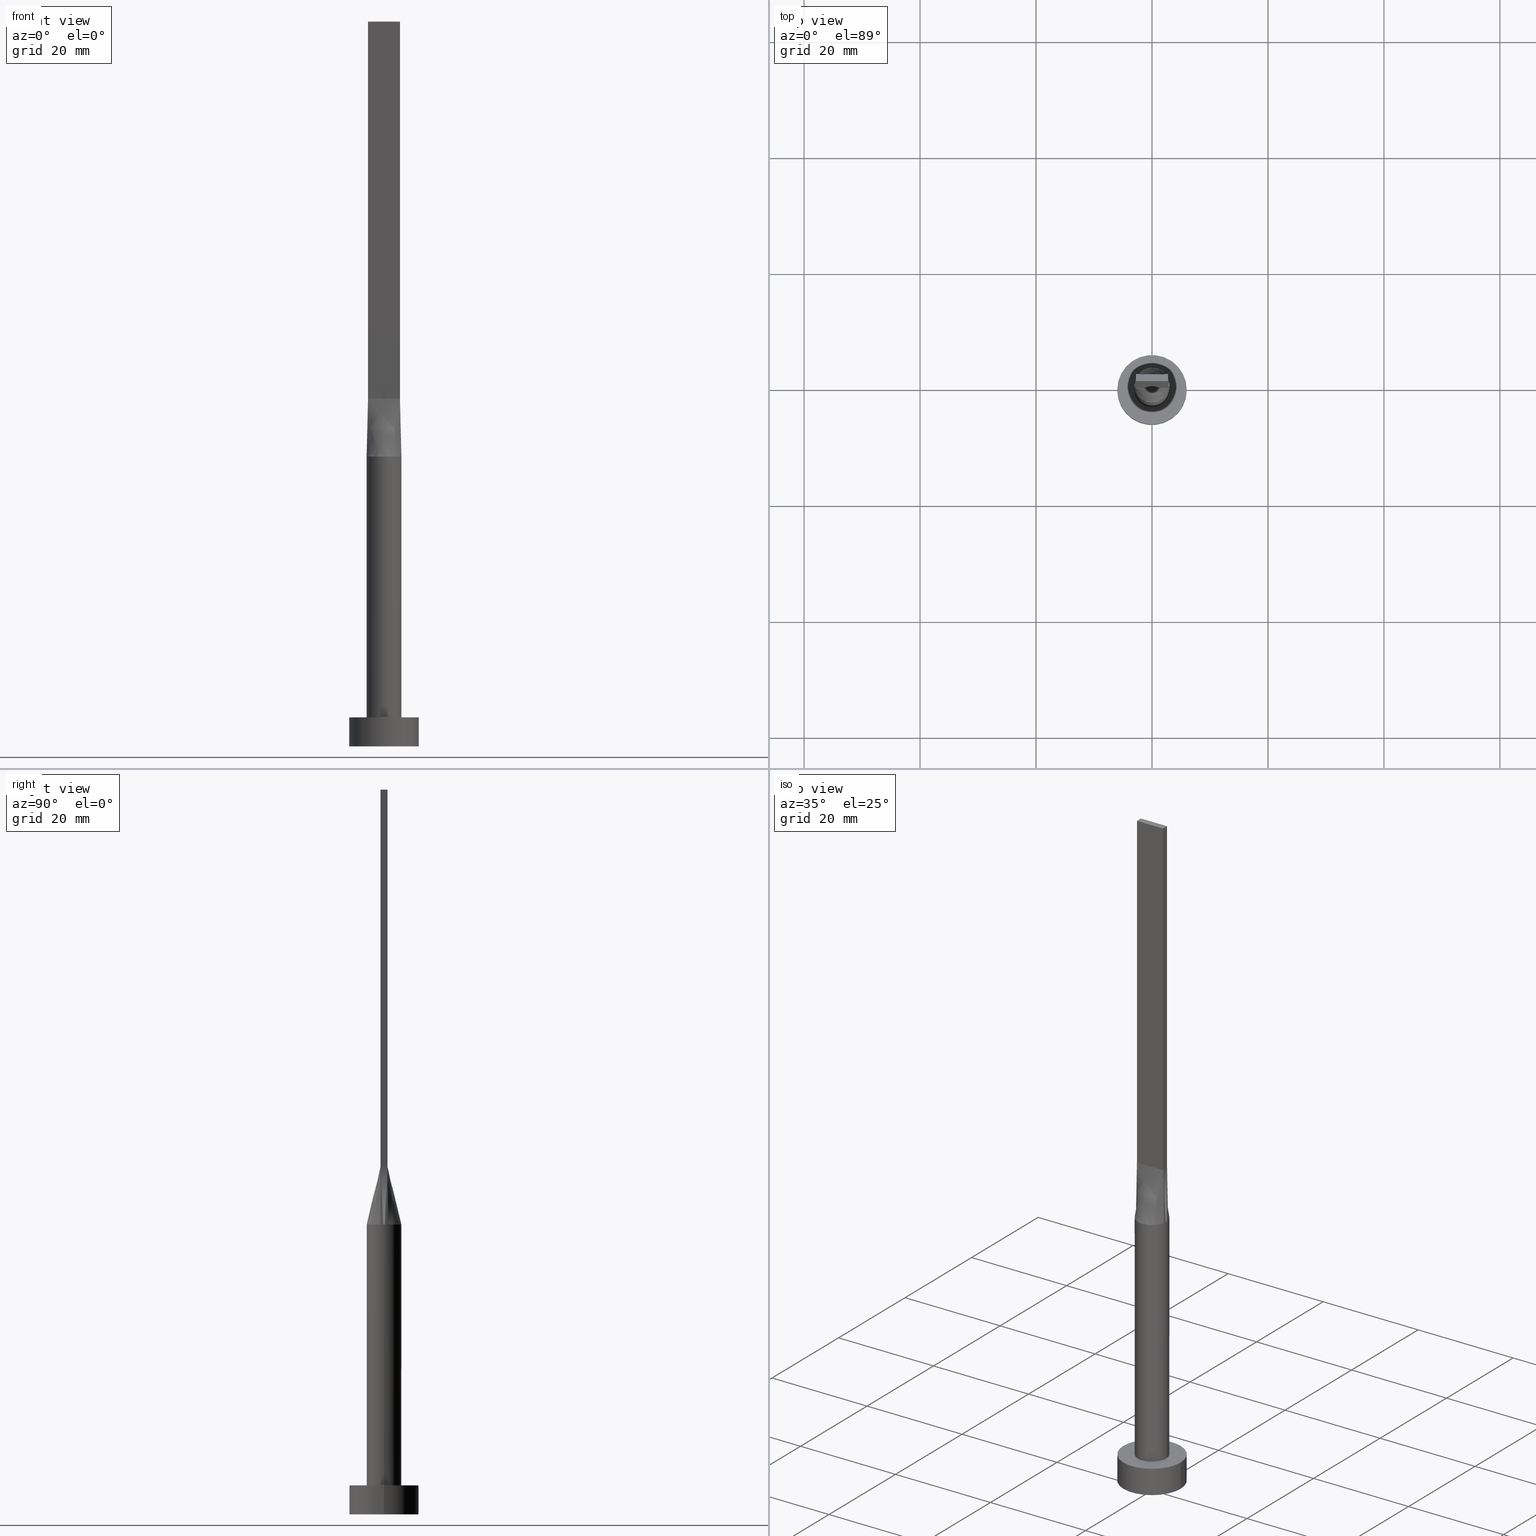
[diagram: canonical four-view strip — front | top / right | iso, engineering-drawing reading convention]
A machine part, canonical four-view strip (front | top / right | iso — engineering-drawing reading convention). The complete STEP part file that produces these views, byte-faithful:
ISO-10303-21;
HEADER;
FILE_DESCRIPTION (( 'STEP AP203' ),
    '1' );
FILE_NAME ('d598.STEP',
    '2023-02-13T10:29:34',
    ( '' ),
    ( '' ),
    'SwSTEP 2.0',
    'SolidWorks 2019',
    '' );
FILE_SCHEMA (( 'CONFIG_CONTROL_DESIGN' ));
ENDSEC;

DATA;
#1 = DIRECTION ( 'NONE',  ( 0.000000000000000000, 0.000000000000000000, 1.000000000000000000 ) ) ;
#2 = DIRECTION ( 'NONE',  ( 0.000000000000000000, 0.000000000000000000, 1.000000000000000000 ) ) ;
#3 = CARTESIAN_POINT ( 'NONE',  ( -2.518011668798964653, 1.657305971825549840, 50.00000000000000000 ) ) ;
#4 = PLANE ( 'NONE',  #255 ) ;
#5 = CARTESIAN_POINT ( 'NONE',  ( 0.000000000000000000, 0.000000000000000000, 49.99999999999999289 ) ) ;
#6 = CARTESIAN_POINT ( 'NONE',  ( 2.750000000000000000, 0.6000000000000001998, 60.00000000000000000 ) ) ;
#7 = EDGE_CURVE ( 'NONE', #68, #494, #131, .T. ) ;
#8 = DATE_AND_TIME ( #503, #304 ) ;
#9 = VECTOR ( 'NONE', #211, 1000.000000000000000 ) ;
#10 = CARTESIAN_POINT ( 'NONE',  ( 2.792624347712116872, 1.135030881087315979, 50.00000000000000000 ) ) ;
#11 = DIRECTION ( 'NONE',  ( 1.000000000000000000, -2.664535259100375697E-15, 0.000000000000000000 ) ) ;
#12 = ADVANCED_FACE ( 'NONE', ( #306 ), #144, .T. ) ;
#13 = CIRCLE ( 'NONE', #415, 6.000000000000000888 ) ;
#14 = EDGE_CURVE ( 'NONE', #502, #404, #129, .T. ) ;
#15 = ADVANCED_FACE ( 'NONE', ( #383, #340 ), #239, .T. ) ;
#16 = EDGE_LOOP ( 'NONE', ( #466, #152, #323, #464 ) ) ;
#17 = FACE_OUTER_BOUND ( 'NONE', #516, .T. ) ;
#18 = VERTEX_POINT ( 'NONE', #77 ) ;
#19 = EDGE_CURVE ( 'NONE', #286, #567, #93, .T. ) ;
#20 = CARTESIAN_POINT ( 'NONE',  ( 2.931047284229977734, 0.6395012256501758641, 49.99999999999999289 ) ) ;
#21 = ORIENTED_EDGE ( 'NONE', *, *, #493, .F. ) ;
#22 = PERSON_AND_ORGANIZATION ( #136, #411 ) ;
#23 = CARTESIAN_POINT ( 'NONE',  ( 0.000000000000000000, 0.000000000000000000, 49.99999999999999289 ) ) ;
#24 = DIRECTION ( 'NONE',  ( 1.000000000000000000, -5.913830031739115543E-17, 0.000000000000000000 ) ) ;
#25 = CC_DESIGN_PERSON_AND_ORGANIZATION_ASSIGNMENT ( #22, #62, ( #149 ) ) ;
#26 = ORIENTED_EDGE ( 'NONE', *, *, #549, .F. ) ;
#27 = LINE ( 'NONE', #155, #438 ) ;
#28 = EDGE_LOOP ( 'NONE', ( #556, #156, #263, #458 ) ) ;
#29 = VECTOR ( 'NONE', #60, 1000.000000000000000 ) ;
#30 = DIRECTION ( 'NONE',  ( 0.000000000000000000, 0.000000000000000000, 1.000000000000000000 ) ) ;
#31 = CARTESIAN_POINT ( 'NONE',  ( -2.750000000000000000, -0.5999999999999994227, 125.0000000000000000 ) ) ;
#32 = CARTESIAN_POINT ( 'NONE',  ( -2.999207587164656630, -0.2156168166748826387, 49.99999999999999289 ) ) ;
#33 = LINE ( 'NONE', #303, #87 ) ;
#34 = DIRECTION ( 'NONE',  ( -0.000000000000000000, -0.000000000000000000, -1.000000000000000000 ) ) ;
#35 = CC_DESIGN_DATE_AND_TIME_ASSIGNMENT ( #280, #100, ( #434 ) ) ;
#36 = CALENDAR_DATE ( 2023, 13, 2 ) ;
#37 = APPROVAL_PERSON_ORGANIZATION ( #414, #285, #552 ) ;
#38 = AXIS2_PLACEMENT_3D ( 'NONE', #245, #526, #441 ) ;
#39 = DIRECTION ( 'NONE',  ( 0.000000000000000000, 0.000000000000000000, 1.000000000000000000 ) ) ;
#40 = CARTESIAN_POINT ( 'NONE',  ( -0.4583333333333366455, -0.5999999999999994227, 59.99999999999998579 ) ) ;
#41 = LINE ( 'NONE', #541, #557 ) ;
#42 = CARTESIAN_POINT ( 'NONE',  ( 1.517787371616671876, -2.616501225271829156, 50.00000000000002842 ) ) ;
#43 = CIRCLE ( 'NONE', #447, 3.000000000000000444 ) ;
#44 = CARTESIAN_POINT ( 'NONE',  ( 2.328745122427009040, 1.922758842442225946, 49.99999999999998579 ) ) ;
#45 = CARTESIAN_POINT ( 'NONE',  ( -2.520833333333333037, -0.5999999999999994227, 59.99999999999999289 ) ) ;
#46 = DIRECTION ( 'NONE',  ( -1.000000000000000000, 0.000000000000000000, 0.000000000000000000 ) ) ;
#47 = CC_DESIGN_DATE_AND_TIME_ASSIGNMENT ( #435, #197, ( #225 ) ) ;
#48 = CARTESIAN_POINT ( 'NONE',  ( 0.2291666666666674346, 0.6000000000000001998, 60.00000000000000000 ) ) ;
#49 = ORIENTED_EDGE ( 'NONE', *, *, #198, .F. ) ;
#50 = CARTESIAN_POINT ( 'NONE',  ( 2.750000000000000000, 0.6000000000000001998, 125.0000000000000000 ) ) ;
#51 = FACE_OUTER_BOUND ( 'NONE', #95, .T. ) ;
#52 = LOCAL_TIME ( 11, 29, 34.00000000000000000, #474 ) ;
#53 = EDGE_CURVE ( 'NONE', #348, #18, #540, .T. ) ;
#54 = ORIENTED_EDGE ( 'NONE', *, *, #449, .F. ) ;
#55 = VERTEX_POINT ( 'NONE', #269 ) ;
#56 = AXIS2_PLACEMENT_3D ( 'NONE', #551, #1, #98 ) ;
#57 = CARTESIAN_POINT ( 'NONE',  ( -2.750000000000000000, 0.6000000000000001998, 125.0000000000000000 ) ) ;
#58 = VERTEX_POINT ( 'NONE', #318 ) ;
#59 = AXIS2_PLACEMENT_3D ( 'NONE', #78, #246, #527 ) ;
#60 = DIRECTION ( 'NONE',  ( -0.01810162078030962129, -0.003949444533885649103, -0.9998283518749604415 ) ) ;
#61 = ORIENTED_EDGE ( 'NONE', *, *, #86, .T. ) ;
#62 = PERSON_AND_ORGANIZATION_ROLE ( 'creator' ) ;
#63 = EDGE_CURVE ( 'NONE', #509, #465, #13, .T. ) ;
#64 = CARTESIAN_POINT ( 'NONE',  ( 2.518011668798964209, -1.657305971825550506, 49.99999999999998579 ) ) ;
#65 = ORIENTED_EDGE ( 'NONE', *, *, #108, .F. ) ;
#66 = LOCAL_TIME ( 11, 29, 34.00000000000000000, #455 ) ;
#67 = CARTESIAN_POINT ( 'NONE',  ( 2.750000000000000000, 0.6000000000000001998, 60.00000000000000000 ) ) ;
#68 = VERTEX_POINT ( 'NONE', #320 ) ;
#69 = CARTESIAN_POINT ( 'NONE',  ( 2.750000000000000000, -0.5999999999999997558, 60.00000000000000000 ) ) ;
#70 = CC_DESIGN_PERSON_AND_ORGANIZATION_ASSIGNMENT ( #548, #275, ( #434 ) ) ;
#71 = CARTESIAN_POINT ( 'NONE',  ( -2.750000000000000000, 0.6000000000000001998, 60.00000000000000000 ) ) ;
#72 = LINE ( 'NONE', #427, #564 ) ;
#73 = COORDINATED_UNIVERSAL_TIME_OFFSET ( 1, 0, .AHEAD. ) ;
#74 = CARTESIAN_POINT ( 'NONE',  ( -2.750000000000000000, 0.6000000000000001998, 125.0000000000000000 ) ) ;
#75 = DIRECTION ( 'NONE',  ( -1.000000000000000000, 0.000000000000000000, 0.000000000000000000 ) ) ;
#76 = CARTESIAN_POINT ( 'NONE',  ( -2.792624347712116428, -1.135030881087314647, 49.99999999999997868 ) ) ;
#77 = CARTESIAN_POINT ( 'NONE',  ( -2.750000000000000000, -0.5999999999999994227, 60.00000000000000000 ) ) ;
#78 = CARTESIAN_POINT ( 'NONE',  ( 0.000000000000000000, 0.000000000000000000, 0.000000000000000000 ) ) ;
#79 = CARTESIAN_POINT ( 'NONE',  ( 0.000000000000000000, 0.000000000000000000, 0.000000000000000000 ) ) ;
#80 = PERSON_AND_ORGANIZATION ( #136, #411 ) ;
#81 = CYLINDRICAL_SURFACE ( 'NONE', #573, 6.000000000000000888 ) ;
#82 = EDGE_CURVE ( 'NONE', #191, #58, #273, .T. ) ;
#83 = ORIENTED_EDGE ( 'NONE', *, *, #208, .F. ) ;
#84 = CARTESIAN_POINT ( 'NONE',  ( -2.792624347712117761, 1.135030881087315313, 49.99999999999998579 ) ) ;
#85 = PLANE ( 'NONE',  #56 ) ;
#86 = EDGE_CURVE ( 'NONE', #520, #58, #405, .T. ) ;
#87 = VECTOR ( 'NONE', #517, 1000.000000000000000 ) ;
#88 = CARTESIAN_POINT ( 'NONE',  ( -0.4026715616377299356, 2.999999999999999556, 49.99999999999998579 ) ) ;
#89 = CARTESIAN_POINT ( 'NONE',  ( -2.931047284229977290, 0.6395012256501755310, 49.99999999999999289 ) ) ;
#90 = CARTESIAN_POINT ( 'NONE',  ( -0.8041209001220690489, 2.916015559847871419, 50.00000000000000711 ) ) ;
#91 = APPLICATION_PROTOCOL_DEFINITION ( 'international standard', 'config_control_design', 1994, #312 ) ;
#92 = CARTESIAN_POINT ( 'NONE',  ( -2.750000000000000000, 0.6000000000000001998, 60.00000000000000000 ) ) ;
#93 = B_SPLINE_CURVE_WITH_KNOTS ( 'NONE', 3,
 ( #409, #376, #554, #139, #44, #212, #281, #97, #324, #88, #504, #579, #498, #165, #3, #84, #366, #134 ),
 .UNSPECIFIED., .F., .F.,
 ( 4, 2, 2, 2, 2, 2, 2, 2, 4 ),
 ( 0.000000000000000000, 0.1250000000000000000, 0.2500000000000000000, 0.3750000000000000000, 0.5000000000000000000, 0.6250000000000000000, 0.7500000000000000000, 0.8750000000000000000, 1.000000000000000000 ),
 .UNSPECIFIED. ) ;
#94 = CARTESIAN_POINT ( 'NONE',  ( -0.4026715616377299356, 2.999999999999999556, 49.99999999999998579 ) ) ;
#95 = EDGE_LOOP ( 'NONE', ( #418, #184 ) ) ;
#96 = PERSON_AND_ORGANIZATION ( #136, #411 ) ;
#97 = CARTESIAN_POINT ( 'NONE',  ( 0.8041209001220689379, 2.916015559847871863, 50.00000000000000711 ) ) ;
#98 = DIRECTION ( 'NONE',  ( 1.000000000000000000, 0.000000000000000000, -0.000000000000000000 ) ) ;
#99 = ORIENTED_EDGE ( 'NONE', *, *, #417, .T. ) ;
#100 = DATE_TIME_ROLE ( 'creation_date' ) ;
#101 = EDGE_CURVE ( 'NONE', #404, #502, #317, .T. ) ;
#102 = CARTESIAN_POINT ( 'NONE',  ( 2.750000000000000000, -0.5999999999999997558, 60.00000000000000000 ) ) ;
#103 = ORIENTED_EDGE ( 'NONE', *, *, #53, .F. ) ;
#104 = VECTOR ( 'NONE', #157, 1000.000000000000000 ) ;
#105 = FACE_OUTER_BOUND ( 'NONE', #145, .T. ) ;
#106 = ORIENTED_EDGE ( 'NONE', *, *, #82, .F. ) ;
#107 = APPROVAL_DATE_TIME ( #576, #553 ) ;
#108 = EDGE_CURVE ( 'NONE', #268, #240, #307, .T. ) ;
#109 = DIRECTION ( 'NONE',  ( 0.000000000000000000, -1.000000000000000000, 0.000000000000000000 ) ) ;
#110 = VECTOR ( 'NONE', #172, 1000.000000000000000 ) ;
#111 = DIRECTION ( 'NONE',  ( -0.000000000000000000, 0.000000000000000000, -1.000000000000000000 ) ) ;
#112 = DIRECTION ( 'NONE',  ( 0.000000000000000000, 0.000000000000000000, 1.000000000000000000 ) ) ;
#113 = EDGE_CURVE ( 'NONE', #333, #520, #442, .T. ) ;
#114 = CARTESIAN_POINT ( 'NONE',  ( -2.750000000000000000, 0.6000000000000001998, 125.0000000000000000 ) ) ;
#115 = CARTESIAN_POINT ( 'NONE',  ( 2.750000000000000000, -0.1999999999999992617, 59.99999999999999289 ) ) ;
#116 = ORIENTED_EDGE ( 'NONE', *, *, #208, .T. ) ;
#117 = DIRECTION ( 'NONE',  ( 0.01810162078030957619, -0.003949444533885573642, 0.9998283518749604415 ) ) ;
#118 = EDGE_CURVE ( 'NONE', #55, #191, #536, .T. ) ;
#119 = LOCAL_TIME ( 11, 29, 34.00000000000000000, #73 ) ;
#120 = DIRECTION ( 'NONE',  ( 0.000000000000000000, 0.000000000000000000, 1.000000000000000000 ) ) ;
#121 = CARTESIAN_POINT ( 'NONE',  ( -2.931047284229977290, 0.6395012256501761971, 49.99999999999999289 ) ) ;
#122 = APPROVAL_ROLE ( '' ) ;
#123 = APPLICATION_PROTOCOL_DEFINITION ( 'international standard', 'config_control_design', 1994, #544 ) ;
#124 = CARTESIAN_POINT ( 'NONE',  ( -2.750000000000000000, -0.5999999999999994227, 125.0000000000000000 ) ) ;
#125 = DIRECTION ( 'NONE',  ( -0.000000000000000000, -0.000000000000000000, -1.000000000000000000 ) ) ;
#126 = CARTESIAN_POINT ( 'NONE',  ( -0.9166666666666658525, 0.6000000000000000888, 60.00000000000000000 ) ) ;
#127 = VECTOR ( 'NONE', #389, 1000.000000000000000 ) ;
#128 = DIRECTION ( 'NONE',  ( 1.000000000000000000, 0.000000000000000000, 0.000000000000000000 ) ) ;
#129 = CIRCLE ( 'NONE', #568, 6.000000000000000888 ) ;
#130 = CARTESIAN_POINT ( 'NONE',  ( -1.829136458871248427, -2.402980488111649660, 49.99999999999997158 ) ) ;
#131 = CIRCLE ( 'NONE', #272, 3.000000000000000444 ) ;
#132 = CARTESIAN_POINT ( 'NONE',  ( 0.9166666666666671848, 0.6000000000000000888, 60.00000000000000000 ) ) ;
#133 = ORIENTED_EDGE ( 'NONE', *, *, #425, .T. ) ;
#134 = CARTESIAN_POINT ( 'NONE',  ( -2.931320679040856803, 0.6395611071856786012, 49.99999999999999289 ) ) ;
#135 = CARTESIAN_POINT ( 'NONE',  ( 2.520833333333333037, 0.6000000000000000888, 60.00000000000000000 ) ) ;
#136 = PERSON ( 'NEUR�EN�', 'NEUR�EN�', 'NEUR�EN�', ('NEUR�EN�'), ('NEUR�EN�'), ('NEUR�EN�') ) ;
#137 = VECTOR ( 'NONE', #117, 1000.000000000000000 ) ;
#138 = VERTEX_POINT ( 'NONE', #31 ) ;
#139 = CARTESIAN_POINT ( 'NONE',  ( 2.518011668798964209, 1.657305971825549840, 49.99999999999997158 ) ) ;
#140 = ADVANCED_FACE ( 'NONE', ( #249 ), #419, .T. ) ;
#141 = CARTESIAN_POINT ( 'NONE',  ( -6.000000000000000888, 0.000000000000000000, 5.000000000000000000 ) ) ;
#142 = ORIENTED_EDGE ( 'NONE', *, *, #344, .T. ) ;
#143 = ADVANCED_FACE ( 'NONE', ( #105 ), #380, .T. ) ;
#144 = CYLINDRICAL_SURFACE ( 'NONE', #182, 6.000000000000000888 ) ;
#145 = EDGE_LOOP ( 'NONE', ( #343, #171, #294, #525, #274 ) ) ;
#146 = CARTESIAN_POINT ( 'NONE',  ( -1.829136458871247761, 2.402980488111649660, 49.99999999999998579 ) ) ;
#147 = DIRECTION ( 'NONE',  ( 1.000000000000000000, 0.000000000000000000, 0.000000000000000000 ) ) ;
#148 = ORIENTED_EDGE ( 'NONE', *, *, #226, .F. ) ;
#149 = PRODUCT_DEFINITION_FORMATION_WITH_SPECIFIED_SOURCE ( 'LIBOVOLN�', '', #334, .NOT_KNOWN. ) ;
#150 = CARTESIAN_POINT ( 'NONE',  ( -6.000000000000000888, 0.000000000000000000, 5.000000000000000000 ) ) ;
#151 = CARTESIAN_POINT ( 'NONE',  ( 0.000000000000000000, 0.000000000000000000, 49.99999999999999289 ) ) ;
#152 = ORIENTED_EDGE ( 'NONE', *, *, #425, .F. ) ;
#153 = CARTESIAN_POINT ( 'NONE',  ( 2.931047284229977734, -0.6395012256501753090, 49.99999999999999289 ) ) ;
#154 = ADVANCED_FACE ( 'NONE', ( #519 ), #463, .F. ) ;
#155 = CARTESIAN_POINT ( 'NONE',  ( -2.750000000000000000, -0.5999999999999994227, 125.0000000000000000 ) ) ;
#156 = ORIENTED_EDGE ( 'NONE', *, *, #63, .F. ) ;
#157 = DIRECTION ( 'NONE',  ( -0.000000000000000000, -0.000000000000000000, -1.000000000000000000 ) ) ;
#158 = FACE_OUTER_BOUND ( 'NONE', #401, .T. ) ;
#159 = AXIS2_PLACEMENT_3D ( 'NONE', #79, #257, #128 ) ;
#160 = DIRECTION ( 'NONE',  ( -0.000000000000000000, -0.000000000000000000, -1.000000000000000000 ) ) ;
#161 = CARTESIAN_POINT ( 'NONE',  ( -2.931320679040856803, 0.6395611071856786012, 49.99999999999999289 ) ) ;
#162 = CARTESIAN_POINT ( 'NONE',  ( -2.328745122427009928, -1.922758842442225058, 49.99999999999997868 ) ) ;
#163 = EDGE_CURVE ( 'NONE', #18, #494, #422, .T. ) ;
#164 = CARTESIAN_POINT ( 'NONE',  ( -2.976487486186430331, 0.4312336333497662211, 49.99999999999999289 ) ) ;
#165 = CARTESIAN_POINT ( 'NONE',  ( -2.328745122427008152, 1.922758842442225280, 49.99999999999998579 ) ) ;
#166 = CARTESIAN_POINT ( 'NONE',  ( -1.145833333333335480, -0.5999999999999994227, 59.99999999999998579 ) ) ;
#167 = EDGE_CURVE ( 'NONE', #138, #55, #27, .T. ) ;
#168 = DIRECTION ( 'NONE',  ( 1.000000000000000000, 0.000000000000000000, 0.000000000000000000 ) ) ;
#169 = DIRECTION ( 'NONE',  ( 0.000000000000000000, -1.000000000000000000, 0.000000000000000000 ) ) ;
#170 = DIRECTION ( 'NONE',  ( 1.000000000000000000, -5.913830031739115543E-17, 0.000000000000000000 ) ) ;
#171 = ORIENTED_EDGE ( 'NONE', *, *, #178, .T. ) ;
#172 = DIRECTION ( 'NONE',  ( -0.000000000000000000, 1.000000000000000000, -0.000000000000000000 ) ) ;
#173 = ORIENTED_EDGE ( 'NONE', *, *, #178, .F. ) ;
#174 = APPROVAL_DATE_TIME ( #8, #285 ) ;
#175 = AXIS2_PLACEMENT_3D ( 'NONE', #23, #396, #431 ) ;
#176 = CARTESIAN_POINT ( 'NONE',  ( 2.328745122427009040, 1.922758842442225946, 49.99999999999998579 ) ) ;
#177 = ORIENTED_EDGE ( 'NONE', *, *, #393, .F. ) ;
#178 = EDGE_CURVE ( 'NONE', #268, #286, #43, .T. ) ;
#179 = B_SPLINE_SURFACE_WITH_KNOTS ( 'NONE', 3, 1, ( 
 ( #121, #71 ),
 ( #164, #315 ),
 ( #248, #440 ),
 ( #32, #362 ),
 ( #259, #395 ),
 ( #530, #448 ) ),
 .UNSPECIFIED., .F., .F., .F.,
 ( 4, 2, 4 ),
 ( 2, 2 ),
 ( 0.000000000000000000, 0.5000000000000000000, 1.000000000000000000 ),
 ( 0.000000000000000000, 1.000000000000000000 ),
 .UNSPECIFIED. ) ;
#180 = EDGE_LOOP ( 'NONE', ( #49, #336 ) ) ;
#181 = EDGE_LOOP ( 'NONE', ( #65, #21, #83, #319, #302, #187 ) ) ;
#182 = AXIS2_PLACEMENT_3D ( 'NONE', #461, #507, #462 ) ;
#183 = CARTESIAN_POINT ( 'NONE',  ( 2.750000000000000000, 0.2000000000000006772, 59.99999999999999289 ) ) ;
#184 = ORIENTED_EDGE ( 'NONE', *, *, #14, .F. ) ;
#185 = DIRECTION ( 'NONE',  ( 1.000000000000000000, 0.000000000000000000, 0.000000000000000000 ) ) ;
#186 = CARTESIAN_POINT ( 'NONE',  ( 1.145833333333330373, -0.5999999999999996447, 60.00000000000000000 ) ) ;
#187 = ORIENTED_EDGE ( 'NONE', *, *, #198, .T. ) ;
#188 = CIRCLE ( 'NONE', #537, 3.000000000000000444 ) ;
#189 = LOCAL_TIME ( 11, 29, 34.00000000000000000, #251 ) ;
#190 = CARTESIAN_POINT ( 'NONE',  ( 2.999207587164657074, -0.2156168166748835269, 49.99999999999999289 ) ) ;
#191 = VERTEX_POINT ( 'NONE', #236 ) ;
#192 = ADVANCED_FACE ( 'NONE', ( #17 ), #523, .T. ) ;
#193 = CARTESIAN_POINT ( 'NONE',  ( -3.000000000000000444, 0.000000000000000000, 49.99999999999999289 ) ) ;
#194 = CARTESIAN_POINT ( 'NONE',  ( -2.750000000000000000, -0.5999999999999994227, 125.0000000000000000 ) ) ;
#195 = CARTESIAN_POINT ( 'NONE',  ( 1.833333333333331261, -0.5999999999999996447, 60.00000000000000000 ) ) ;
#196 = ORIENTED_EDGE ( 'NONE', *, *, #522, .T. ) ;
#197 = DATE_TIME_ROLE ( 'classification_date' ) ;
#198 = EDGE_CURVE ( 'NONE', #508, #240, #188, .T. ) ;
#199 = CARTESIAN_POINT ( 'NONE',  ( -2.840523642114988423, 0.6197506128250878099, 54.99999999999999289 ) ) ;
#200 = CARTESIAN_POINT ( 'NONE',  ( -0.9166666666666691832, -0.5999999999999994227, 59.99999999999998579 ) ) ;
#201 = LINE ( 'NONE', #124, #104 ) ;
#202 = DIRECTION ( 'NONE',  ( 0.000000000000000000, 1.000000000000000000, 0.000000000000000000 ) ) ;
#203 = CARTESIAN_POINT ( 'NONE',  ( 2.750000000000000000, 0.6000000000000001998, 125.0000000000000000 ) ) ;
#204 = VECTOR ( 'NONE', #170, 1000.000000000000000 ) ;
#205 = CARTESIAN_POINT ( 'NONE',  ( -0.2291666666666703212, -0.5999999999999995337, 59.99999999999999289 ) ) ;
#206 = APPROVAL_DATE_TIME ( #559, #452 ) ;
#207 = DIRECTION ( 'NONE',  ( -1.000000000000000000, -0.000000000000000000, -0.000000000000000000 ) ) ;
#208 = EDGE_CURVE ( 'NONE', #494, #333, #265, .T. ) ;
#209 = CARTESIAN_POINT ( 'NONE',  ( -1.517787371616671654, 2.616501225271827380, 50.00000000000000711 ) ) ;
#210 = VECTOR ( 'NONE', #260, 1000.000000000000000 ) ;
#211 = DIRECTION ( 'NONE',  ( -0.01810162078030962129, -0.003949444533885605735, 0.9998283518749604415 ) ) ;
#212 = CARTESIAN_POINT ( 'NONE',  ( 1.829136458871247761, 2.402980488111650992, 49.99999999999998579 ) ) ;
#213 = CARTESIAN_POINT ( 'NONE',  ( 2.750000000000000000, -0.5999999999999997558, 125.0000000000000000 ) ) ;
#214 = LINE ( 'NONE', #491, #420 ) ;
#215 = ADVANCED_BREP_SHAPE_REPRESENTATION ( 'd598', ( #534, #159 ), #338 ) ;
#216 = CARTESIAN_POINT ( 'NONE',  ( -2.750000000000000000, -0.5999999999999994227, 60.00000000000000000 ) ) ;
#217 = ADVANCED_FACE ( 'NONE', ( #406 ), #368, .T. ) ;
#218 = DIRECTION ( 'NONE',  ( 1.000000000000000000, 0.000000000000000000, 0.000000000000000000 ) ) ;
#219 = ORIENTED_EDGE ( 'NONE', *, *, #19, .F. ) ;
#220 = DIRECTION ( 'NONE',  ( -0.000000000000000000, -0.000000000000000000, -1.000000000000000000 ) ) ;
#221 = CARTESIAN_POINT ( 'NONE',  ( 1.829136458871247761, 2.402980488111650992, 49.99999999999998579 ) ) ;
#222 = ORIENTED_EDGE ( 'NONE', *, *, #429, .F. ) ;
#223 = DIRECTION ( 'NONE',  ( 1.000000000000000000, 0.000000000000000000, 0.000000000000000000 ) ) ;
#224 = ORIENTED_EDGE ( 'NONE', *, *, #299, .F. ) ;
#225 = SECURITY_CLASSIFICATION ( '', '', #234 ) ;
#226 = EDGE_CURVE ( 'NONE', #18, #520, #374, .T. ) ;
#227 = ORIENTED_EDGE ( 'NONE', *, *, #337, .F. ) ;
#228 = ORIENTED_EDGE ( 'NONE', *, *, #167, .F. ) ;
#229 = ADVANCED_FACE ( 'NONE', ( #51 ), #85, .F. ) ;
#230 = ORIENTED_EDGE ( 'NONE', *, *, #363, .F. ) ;
#231 = PRODUCT_DEFINITION_SHAPE ( 'NONE', 'NONE',  #434 ) ;
#232 = DIRECTION ( 'NONE',  ( 1.000000000000000000, 0.000000000000000000, -0.000000000000000000 ) ) ;
#233 = ORIENTED_EDGE ( 'NONE', *, *, #377, .T. ) ;
#234 = SECURITY_CLASSIFICATION_LEVEL ( 'unclassified' ) ;
#235 = VECTOR ( 'NONE', #220, 1000.000000000000000 ) ;
#236 = CARTESIAN_POINT ( 'NONE',  ( 2.750000000000000000, 0.6000000000000001998, 125.0000000000000000 ) ) ;
#237 = ORIENTED_EDGE ( 'NONE', *, *, #417, .F. ) ;
#238 = CARTESIAN_POINT ( 'NONE',  ( -6.000000000000000888, 0.000000000000000000, 0.000000000000000000 ) ) ;
#239 = PLANE ( 'NONE',  #309 ) ;
#240 = VERTEX_POINT ( 'NONE', #325 ) ;
#241 = PERSON_AND_ORGANIZATION ( #136, #411 ) ;
#242 = ADVANCED_FACE ( 'NONE', ( #410 ), #283, .T. ) ;
#243 = VERTEX_POINT ( 'NONE', #114 ) ;
#244 = CALENDAR_DATE ( 2023, 13, 2 ) ;
#245 = CARTESIAN_POINT ( 'NONE',  ( 0.000000000000000000, 0.000000000000000000, 5.000000000000000000 ) ) ;
#246 = DIRECTION ( 'NONE',  ( 0.000000000000000000, 0.000000000000000000, 1.000000000000000000 ) ) ;
#247 = PLANE ( 'NONE',  #355 ) ;
#248 = CARTESIAN_POINT ( 'NONE',  ( -2.999207587164656630, 0.2156168166748832771, 49.99999999999999289 ) ) ;
#249 = FACE_OUTER_BOUND ( 'NONE', #278, .T. ) ;
#250 = PLANE ( 'NONE',  #267 ) ;
#251 = COORDINATED_UNIVERSAL_TIME_OFFSET ( 1, 0, .AHEAD. ) ;
#252 = DIRECTION ( 'NONE',  ( 0.000000000000000000, 0.000000000000000000, 1.000000000000000000 ) ) ;
#253 = AXIS2_PLACEMENT_3D ( 'NONE', #298, #30, #467 ) ;
#254 =( NAMED_UNIT ( * ) PLANE_ANGLE_UNIT ( ) SI_UNIT ( $, .RADIAN. ) );
#255 = AXIS2_PLACEMENT_3D ( 'NONE', #287, #373, #555 ) ;
#256 = CARTESIAN_POINT ( 'NONE',  ( -1.604166666666667851, -0.5999999999999994227, 59.99999999999998579 ) ) ;
#257 = DIRECTION ( 'NONE',  ( 0.000000000000000000, 0.000000000000000000, 1.000000000000000000 ) ) ;
#258 = DESIGN_CONTEXT ( 'detailed design', #312, 'design' ) ;
#259 = CARTESIAN_POINT ( 'NONE',  ( -2.976487486186430331, -0.4312336333497656105, 49.99999999999999289 ) ) ;
#260 = DIRECTION ( 'NONE',  ( -0.01810162078030962129, 0.003949444533885595326, 0.9998283518749604415 ) ) ;
#261 = CARTESIAN_POINT ( 'NONE',  ( -2.520833333333333037, 0.6000000000000000888, 60.00000000000000000 ) ) ;
#262 = ADVANCED_FACE ( 'NONE', ( #158 ), #247, .F. ) ;
#263 = ORIENTED_EDGE ( 'NONE', *, *, #326, .T. ) ;
#264 = DIRECTION ( 'NONE',  ( 0.000000000000000000, 0.000000000000000000, 1.000000000000000000 ) ) ;
#265 = CIRCLE ( 'NONE', #322, 3.000000000000000444 ) ;
#266 = CARTESIAN_POINT ( 'NONE',  ( 0.4583333333333340365, 0.6000000000000000888, 60.00000000000000000 ) ) ;
#267 = AXIS2_PLACEMENT_3D ( 'NONE', #203, #390, #528 ) ;
#268 = VERTEX_POINT ( 'NONE', #346 ) ;
#269 = CARTESIAN_POINT ( 'NONE',  ( 2.750000000000000000, -0.5999999999999997558, 125.0000000000000000 ) ) ;
#270 = CARTESIAN_POINT ( 'NONE',  ( -0.4583333333333325932, 0.6000000000000000888, 60.00000000000000000 ) ) ;
#271 = APPROVAL_STATUS ( 'not_yet_approved' ) ;
#272 = AXIS2_PLACEMENT_3D ( 'NONE', #529, #2, #168 ) ;
#273 = LINE ( 'NONE', #50, #235 ) ;
#274 = ORIENTED_EDGE ( 'NONE', *, *, #113, .F. ) ;
#275 = PERSON_AND_ORGANIZATION_ROLE ( 'creator' ) ;
#276 = ADVANCED_FACE ( 'NONE', ( #471 ), #250, .F. ) ;
#277 = CARTESIAN_POINT ( 'NONE',  ( 0.4026715616377294915, 2.999999999999999556, 49.99999999999999289 ) ) ;
#278 = EDGE_LOOP ( 'NONE', ( #116, #353, #148, #416 ) ) ;
#279 = CARTESIAN_POINT ( 'NONE',  ( -2.328745122427008152, 1.922758842442225280, 49.99999999999998579 ) ) ;
#280 = DATE_AND_TIME ( #412, #66 ) ;
#281 = CARTESIAN_POINT ( 'NONE',  ( 1.517787371616672099, 2.616501225271827824, 50.00000000000000000 ) ) ;
#282 = CARTESIAN_POINT ( 'NONE',  ( 2.750000000000000000, -0.5999999999999997558, 60.00000000000000000 ) ) ;
#283 = B_SPLINE_SURFACE_WITH_KNOTS ( 'NONE', 3, 1, ( 
 ( #371, #543 ),
 ( #403, #135 ),
 ( #10, #453 ),
 ( #369, #451 ),
 ( #176, #321 ),
 ( #221, #499 ),
 ( #496, #132 ),
 ( #492, #266 ),
 ( #277, #48 ),
 ( #94, #547 ),
 ( #90, #270 ),
 ( #209, #126 ),
 ( #146, #314 ),
 ( #279, #539 ),
 ( #501, #423 ),
 ( #561, #394 ),
 ( #484, #261 ),
 ( #89, #384 ) ),
 .UNSPECIFIED., .F., .F., .F.,
 ( 4, 2, 2, 2, 2, 2, 2, 2, 4 ),
 ( 2, 2 ),
 ( 0.000000000000000000, 0.1250000000000000000, 0.2500000000000000000, 0.3750000000000000000, 0.5000000000000000000, 0.6250000000000000000, 0.7500000000000000000, 0.8750000000000000000, 1.000000000000000000 ),
 ( 0.000000000000000000, 1.000000000000000000 ),
 .UNSPECIFIED. ) ;
#284 = ORIENTED_EDGE ( 'NONE', *, *, #226, .T. ) ;
#285 = APPROVAL ( #271, 'NEUR�EN�' ) ;
#286 = VERTEX_POINT ( 'NONE', #308 ) ;
#287 = CARTESIAN_POINT ( 'NONE',  ( 0.000000000000000000, 0.000000000000000000, 125.0000000000000000 ) ) ;
#288 = CC_DESIGN_SECURITY_CLASSIFICATION ( #225, ( #149 ) ) ;
#289 = CARTESIAN_POINT ( 'NONE',  ( 2.750000000000000000, -0.3999999999999994116, 59.99999999999999289 ) ) ;
#290 = ORIENTED_EDGE ( 'NONE', *, *, #363, .T. ) ;
#291 = CIRCLE ( 'NONE', #175, 3.000000000000000444 ) ;
#292 = ORIENTED_EDGE ( 'NONE', *, *, #108, .T. ) ;
#293 = CARTESIAN_POINT ( 'NONE',  ( 2.999207587164657074, 0.2156168166748827775, 49.99999999999999289 ) ) ;
#294 = ORIENTED_EDGE ( 'NONE', *, *, #482, .T. ) ;
#295 = CARTESIAN_POINT ( 'NONE',  ( 0.000000000000000000, 0.000000000000000000, 0.000000000000000000 ) ) ;
#296 = EDGE_LOOP ( 'NONE', ( #413, #224, #227, #375 ) ) ;
#297 = PERSON_AND_ORGANIZATION ( #136, #411 ) ;
#298 = CARTESIAN_POINT ( 'NONE',  ( 0.000000000000000000, 0.000000000000000000, 5.000000000000000000 ) ) ;
#299 = EDGE_CURVE ( 'NONE', #243, #348, #481, .T. ) ;
#300 = DIRECTION ( 'NONE',  ( 5.913830031739115543E-17, 1.000000000000000000, -0.000000000000000000 ) ) ;
#301 = CARTESIAN_POINT ( 'NONE',  ( 2.976487486186430331, 0.4312336333497658880, 49.99999999999999289 ) ) ;
#302 = ORIENTED_EDGE ( 'NONE', *, *, #449, .T. ) ;
#303 = CARTESIAN_POINT ( 'NONE',  ( 2.750000000000000000, 0.6000000000000001998, 125.0000000000000000 ) ) ;
#304 = LOCAL_TIME ( 11, 29, 34.00000000000000000, #408 ) ;
#305 = CARTESIAN_POINT ( 'NONE',  ( 1.604166666666664298, -0.5999999999999996447, 60.00000000000000000 ) ) ;
#306 = FACE_OUTER_BOUND ( 'NONE', #28, .T. ) ;
#307 = LINE ( 'NONE', #316, #360 ) ;
#308 = CARTESIAN_POINT ( 'NONE',  ( 2.931303352270923757, 0.6395574164693091923, 49.99999999999999289 ) ) ;
#309 = AXIS2_PLACEMENT_3D ( 'NONE', #518, #112, #470 ) ;
#310 = MECHANICAL_CONTEXT ( 'NONE', #544, 'mechanical' ) ;
#311 = CARTESIAN_POINT ( 'NONE',  ( 0.000000000000000000, 0.000000000000000000, 49.99999999999999289 ) ) ;
#312 = APPLICATION_CONTEXT ( 'configuration controlled 3d designs of mechanical parts and assemblies' ) ;
#313 = CIRCLE ( 'NONE', #370, 3.000000000000000444 ) ;
#314 = CARTESIAN_POINT ( 'NONE',  ( -1.145833333333332371, 0.6000000000000000888, 60.00000000000000000 ) ) ;
#315 = CARTESIAN_POINT ( 'NONE',  ( -2.750000000000000000, 0.3999999999999996336, 59.99999999999999289 ) ) ;
#316 = CARTESIAN_POINT ( 'NONE',  ( 3.000000000000000444, 3.673940397442059868E-16, 49.99999999999999289 ) ) ;
#317 = CIRCLE ( 'NONE', #59, 6.000000000000000888 ) ;
#318 = CARTESIAN_POINT ( 'NONE',  ( 2.750000000000000000, 0.6000000000000001998, 60.00000000000000000 ) ) ;
#319 = ORIENTED_EDGE ( 'NONE', *, *, #7, .F. ) ;
#320 = CARTESIAN_POINT ( 'NONE',  ( -2.999603793582328315, -7.025298958605770567E-16, 49.99999999999999289 ) ) ;
#321 = CARTESIAN_POINT ( 'NONE',  ( 1.604166666666666963, 0.6000000000000000888, 60.00000000000000000 ) ) ;
#322 = AXIS2_PLACEMENT_3D ( 'NONE', #335, #515, #223 ) ;
#323 = ORIENTED_EDGE ( 'NONE', *, *, #344, .F. ) ;
#324 = CARTESIAN_POINT ( 'NONE',  ( 0.4026715616377294915, 2.999999999999999556, 49.99999999999999289 ) ) ;
#325 = CARTESIAN_POINT ( 'NONE',  ( 3.000000000000000444, 3.673940397442059868E-16, 5.000000000000000000 ) ) ;
#326 = EDGE_CURVE ( 'NONE', #509, #404, #533, .T. ) ;
#327 = CARTESIAN_POINT ( 'NONE',  ( -2.931315536094174057, -0.6395601373676296220, 49.99999999999999289 ) ) ;
#328 = ORIENTED_EDGE ( 'NONE', *, *, #7, .T. ) ;
#329 = ORIENTED_EDGE ( 'NONE', *, *, #482, .F. ) ;
#330 = CC_DESIGN_APPROVAL ( #285, ( #434 ) ) ;
#331 = ADVANCED_FACE ( 'NONE', ( #514 ), #4, .T. ) ;
#332 = CARTESIAN_POINT ( 'NONE',  ( 6.000000000000000888, 7.347880794884120722E-16, 0.000000000000000000 ) ) ;
#333 = VERTEX_POINT ( 'NONE', #483 ) ;
#334 = PRODUCT ( 'd598', 'd598', '', ( #310 ) ) ;
#335 = CARTESIAN_POINT ( 'NONE',  ( 0.000000000000000000, 0.000000000000000000, 49.99999999999999289 ) ) ;
#336 = ORIENTED_EDGE ( 'NONE', *, *, #377, .F. ) ;
#337 = EDGE_CURVE ( 'NONE', #191, #243, #33, .T. ) ;
#338 =( GEOMETRIC_REPRESENTATION_CONTEXT ( 3 ) GLOBAL_UNCERTAINTY_ASSIGNED_CONTEXT ( ( #487 ) ) GLOBAL_UNIT_ASSIGNED_CONTEXT ( ( #581, #254, #359 ) ) REPRESENTATION_CONTEXT ( 'NONE', 'WORKASPACE' ) );
#339 = APPROVAL_STATUS ( 'not_yet_approved' ) ;
#340 = FACE_OUTER_BOUND ( 'NONE', #512, .T. ) ;
#341 = DIRECTION ( 'NONE',  ( -0.000000000000000000, -0.000000000000000000, -1.000000000000000000 ) ) ;
#342 = DIRECTION ( 'NONE',  ( -0.000000000000000000, -0.000000000000000000, -1.000000000000000000 ) ) ;
#343 = ORIENTED_EDGE ( 'NONE', *, *, #493, .T. ) ;
#344 = EDGE_CURVE ( 'NONE', #243, #138, #574, .T. ) ;
#345 = LINE ( 'NONE', #193, #127 ) ;
#346 = CARTESIAN_POINT ( 'NONE',  ( 2.999603793582328759, 7.166726372340513095E-16, 49.99999999999999289 ) ) ;
#347 = CARTESIAN_POINT ( 'NONE',  ( 2.792624347712116872, -1.135030881087315757, 49.99999999999999289 ) ) ;
#348 = VERTEX_POINT ( 'NONE', #354 ) ;
#349 = PERSON_AND_ORGANIZATION_ROLE ( 'classification_officer' ) ;
#350 = CARTESIAN_POINT ( 'NONE',  ( 2.840523642114988867, 0.6197506128250880320, 54.99999999999999289 ) ) ;
#351 = PLANE ( 'NONE',  #457 ) ;
#352 = DIRECTION ( 'NONE',  ( 1.000000000000000000, 0.000000000000000000, 0.000000000000000000 ) ) ;
#353 = ORIENTED_EDGE ( 'NONE', *, *, #113, .T. ) ;
#354 = CARTESIAN_POINT ( 'NONE',  ( -2.750000000000000000, 0.6000000000000001998, 60.00000000000000000 ) ) ;
#355 = AXIS2_PLACEMENT_3D ( 'NONE', #194, #300, #356 ) ;
#356 = DIRECTION ( 'NONE',  ( -1.000000000000000000, 5.913830031739115543E-17, 0.000000000000000000 ) ) ;
#357 = PRODUCT_RELATED_PRODUCT_CATEGORY ( 'detail', '', ( #334 ) ) ;
#358 = CARTESIAN_POINT ( 'NONE',  ( -2.750000000000000000, -0.5999999999999994227, 60.00000000000000000 ) ) ;
#359 =( NAMED_UNIT ( * ) SI_UNIT ( $, .STERADIAN. ) SOLID_ANGLE_UNIT ( ) );
#360 = VECTOR ( 'NONE', #34, 1000.000000000000000 ) ;
#361 = CARTESIAN_POINT ( 'NONE',  ( 0.4583333333333299286, -0.5999999999999995337, 59.99999999999999289 ) ) ;
#362 = CARTESIAN_POINT ( 'NONE',  ( -2.750000000000000000, -0.2000000000000005107, 59.99999999999999289 ) ) ;
#363 = EDGE_CURVE ( 'NONE', #465, #509, #546, .T. ) ;
#364 = CARTESIAN_POINT ( 'NONE',  ( -2.931047284229977734, -0.6395012256501755310, 49.99999999999999289 ) ) ;
#365 = APPROVAL_STATUS ( 'not_yet_approved' ) ;
#366 = CARTESIAN_POINT ( 'NONE',  ( -2.878980386154874616, 0.8781411751610629368, 50.00000000000000000 ) ) ;
#367 = CC_DESIGN_PERSON_AND_ORGANIZATION_ASSIGNMENT ( #297, #510, ( #149 ) ) ;
#368 = CYLINDRICAL_SURFACE ( 'NONE', #378, 3.000000000000000444 ) ;
#369 = CARTESIAN_POINT ( 'NONE',  ( 2.518011668798964209, 1.657305971825549840, 49.99999999999997158 ) ) ;
#370 = AXIS2_PLACEMENT_3D ( 'NONE', #311, #39, #11 ) ;
#371 = CARTESIAN_POINT ( 'NONE',  ( 2.931047284229977290, 0.6395012256501767522, 49.99999999999999289 ) ) ;
#372 = VECTOR ( 'NONE', #341, 1000.000000000000000 ) ;
#373 = DIRECTION ( 'NONE',  ( 0.000000000000000000, 0.000000000000000000, 1.000000000000000000 ) ) ;
#374 = LINE ( 'NONE', #216, #204 ) ;
#375 = ORIENTED_EDGE ( 'NONE', *, *, #82, .T. ) ;
#376 = CARTESIAN_POINT ( 'NONE',  ( 2.878980386154874616, 0.8781411751610636029, 49.99999999999999289 ) ) ;
#377 = EDGE_CURVE ( 'NONE', #240, #508, #495, .T. ) ;
#378 = AXIS2_PLACEMENT_3D ( 'NONE', #5, #454, #46 ) ;
#379 = EDGE_LOOP ( 'NONE', ( #61, #106, #407, #99 ) ) ;
#380 = B_SPLINE_SURFACE_WITH_KNOTS ( 'NONE', 3, 1, ( 
 ( #381, #102 ),
 ( #391, #289 ),
 ( #190, #115 ),
 ( #293, #183 ),
 ( #301, #472 ),
 ( #20, #67 ) ),
 .UNSPECIFIED., .F., .F., .F.,
 ( 4, 2, 4 ),
 ( 2, 2 ),
 ( 0.000000000000000000, 0.5000000000000000000, 1.000000000000000000 ),
 ( 0.000000000000000000, 1.000000000000000000 ),
 .UNSPECIFIED. ) ;
#381 = CARTESIAN_POINT ( 'NONE',  ( 2.931047284229977290, -0.6395012256501766412, 49.99999999999999289 ) ) ;
#382 = EDGE_LOOP ( 'NONE', ( #426, #500, #26, #329 ) ) ;
#383 = FACE_BOUND ( 'NONE', #180, .T. ) ;
#384 = CARTESIAN_POINT ( 'NONE',  ( -2.750000000000000000, 0.6000000000000001998, 60.00000000000000000 ) ) ;
#385 = CARTESIAN_POINT ( 'NONE',  ( 2.291666666666665186, -0.5999999999999996447, 60.00000000000000000 ) ) ;
#386 = CC_DESIGN_APPROVAL ( #553, ( #149 ) ) ;
#387 = CARTESIAN_POINT ( 'NONE',  ( 0.000000000000000000, 0.000000000000000000, 5.000000000000000000 ) ) ;
#388 = ORIENTED_EDGE ( 'NONE', *, *, #429, .T. ) ;
#389 = DIRECTION ( 'NONE',  ( -0.000000000000000000, -0.000000000000000000, -1.000000000000000000 ) ) ;
#390 = DIRECTION ( 'NONE',  ( 0.000000000000000000, -1.000000000000000000, 0.000000000000000000 ) ) ;
#391 = CARTESIAN_POINT ( 'NONE',  ( 2.976487486186430331, -0.4312336333497666652, 49.99999999999999289 ) ) ;
#392 = CARTESIAN_POINT ( 'NONE',  ( -0.4026715616377306572, -3.000000000000000000, 50.00000000000000000 ) ) ;
#393 = EDGE_CURVE ( 'NONE', #567, #348, #480, .T. ) ;
#394 = CARTESIAN_POINT ( 'NONE',  ( -2.291666666666666075, 0.6000000000000000888, 60.00000000000000000 ) ) ;
#395 = CARTESIAN_POINT ( 'NONE',  ( -2.750000000000000000, -0.4000000000000001332, 59.99999999999999289 ) ) ;
#396 = DIRECTION ( 'NONE',  ( 0.000000000000000000, 0.000000000000000000, 1.000000000000000000 ) ) ;
#397 = VECTOR ( 'NONE', #443, 1000.000000000000000 ) ;
#398 = CALENDAR_DATE ( 2023, 13, 2 ) ;
#399 = CARTESIAN_POINT ( 'NONE',  ( 0.4026715616377293805, -3.000000000000001332, 49.99999999999998579 ) ) ;
#400 = CC_DESIGN_APPROVAL ( #452, ( #225 ) ) ;
#401 = EDGE_LOOP ( 'NONE', ( #284, #237, #228, #133 ) ) ;
#402 = CARTESIAN_POINT ( 'NONE',  ( 0.9166666666666636321, -0.5999999999999996447, 59.99999999999999289 ) ) ;
#403 = CARTESIAN_POINT ( 'NONE',  ( 2.878980386154874616, 0.8781411751610636029, 49.99999999999999289 ) ) ;
#404 = VERTEX_POINT ( 'NONE', #238 ) ;
#405 = LINE ( 'NONE', #6, #110 ) ;
#406 = FACE_OUTER_BOUND ( 'NONE', #181, .T. ) ;
#407 = ORIENTED_EDGE ( 'NONE', *, *, #118, .F. ) ;
#408 = COORDINATED_UNIVERSAL_TIME_OFFSET ( 1, 0, .AHEAD. ) ;
#409 = CARTESIAN_POINT ( 'NONE',  ( 2.931303352270923757, 0.6395574164693091923, 49.99999999999999289 ) ) ;
#410 = FACE_OUTER_BOUND ( 'NONE', #382, .T. ) ;
#411 = ORGANIZATION ( 'NEUR�EN�', 'NEUR�EN�', '' ) ;
#412 = CALENDAR_DATE ( 2023, 13, 2 ) ;
#413 = ORIENTED_EDGE ( 'NONE', *, *, #549, .T. ) ;
#414 = PERSON_AND_ORGANIZATION ( #136, #411 ) ;
#415 = AXIS2_PLACEMENT_3D ( 'NONE', #490, #264, #218 ) ;
#416 = ORIENTED_EDGE ( 'NONE', *, *, #163, .T. ) ;
#417 = EDGE_CURVE ( 'NONE', #55, #520, #72, .T. ) ;
#418 = ORIENTED_EDGE ( 'NONE', *, *, #101, .F. ) ;
#419 = B_SPLINE_SURFACE_WITH_KNOTS ( 'NONE', 3, 1, ( 
 ( #364, #358 ),
 ( #437, #45 ),
 ( #76, #531 ),
 ( #444, #580 ),
 ( #162, #256 ),
 ( #130, #166 ),
 ( #476, #200 ),
 ( #446, #40 ),
 ( #392, #205 ),
 ( #399, #572 ),
 ( #578, #361 ),
 ( #42, #402 ),
 ( #478, #186 ),
 ( #511, #305 ),
 ( #64, #195 ),
 ( #347, #385 ),
 ( #563, #566 ),
 ( #153, #69 ) ),
 .UNSPECIFIED., .F., .F., .F.,
 ( 4, 2, 2, 2, 2, 2, 2, 2, 4 ),
 ( 2, 2 ),
 ( 0.000000000000000000, 0.1250000000000000833, 0.2500000000000001665, 0.3750000000000001110, 0.5000000000000001110, 0.6250000000000001110, 0.7500000000000000000, 0.8750000000000000000, 1.000000000000000000 ),
 ( 0.000000000000000000, 1.000000000000000000 ),
 .UNSPECIFIED. ) ;
#420 = VECTOR ( 'NONE', #125, 1000.000000000000000 ) ;
#421 = DIRECTION ( 'NONE',  ( 0.000000000000000000, 0.000000000000000000, 1.000000000000000000 ) ) ;
#422 = LINE ( 'NONE', #432, #29 ) ;
#423 = CARTESIAN_POINT ( 'NONE',  ( -1.833333333333332593, 0.6000000000000000888, 60.00000000000000000 ) ) ;
#424 = ORIENTED_EDGE ( 'NONE', *, *, #167, .T. ) ;
#425 = EDGE_CURVE ( 'NONE', #138, #18, #201, .T. ) ;
#426 = ORIENTED_EDGE ( 'NONE', *, *, #19, .T. ) ;
#427 = CARTESIAN_POINT ( 'NONE',  ( 2.750000000000000000, -0.5999999999999997558, 125.0000000000000000 ) ) ;
#428 = DIRECTION ( 'NONE',  ( -1.000000000000000000, 0.000000000000000000, 0.000000000000000000 ) ) ;
#429 = EDGE_CURVE ( 'NONE', #567, #68, #291, .T. ) ;
#430 = EDGE_LOOP ( 'NONE', ( #388, #328, #545, #103, #177 ) ) ;
#431 = DIRECTION ( 'NONE',  ( 1.000000000000000000, 0.000000000000000000, 0.000000000000000000 ) ) ;
#432 = CARTESIAN_POINT ( 'NONE',  ( -2.840523642114988867, -0.6197506128250873658, 54.99999999999999289 ) ) ;
#433 = ORIENTED_EDGE ( 'NONE', *, *, #118, .T. ) ;
#434 = PRODUCT_DEFINITION ( 'NEZN�M�', '', #149, #258 ) ;
#435 = DATE_AND_TIME ( #244, #52 ) ;
#436 = CARTESIAN_POINT ( 'NONE',  ( 6.000000000000000888, 7.347880794884120722E-16, 5.000000000000000000 ) ) ;
#437 = CARTESIAN_POINT ( 'NONE',  ( -2.878980386154874616, -0.8781411751610622707, 49.99999999999999289 ) ) ;
#438 = VECTOR ( 'NONE', #24, 1000.000000000000000 ) ;
#439 = CLOSED_SHELL ( 'NONE', ( #192, #485, #12, #15, #229, #217, #140, #143, #488, #242, #276, #154, #262, #459, #331 ) ) ;
#440 = CARTESIAN_POINT ( 'NONE',  ( -2.750000000000000000, 0.1999999999999993727, 59.99999999999999289 ) ) ;
#441 = DIRECTION ( 'NONE',  ( 1.000000000000000000, 0.000000000000000000, 0.000000000000000000 ) ) ;
#442 = LINE ( 'NONE', #575, #210 ) ;
#443 = DIRECTION ( 'NONE',  ( -0.000000000000000000, -0.000000000000000000, -1.000000000000000000 ) ) ;
#444 = CARTESIAN_POINT ( 'NONE',  ( -2.518011668798964653, -1.657305971825550062, 49.99999999999997868 ) ) ;
#445 = SHAPE_DEFINITION_REPRESENTATION ( #231, #215 ) ;
#446 = CARTESIAN_POINT ( 'NONE',  ( -0.8041209001220698260, -2.916015559847872307, 50.00000000000001421 ) ) ;
#447 = AXIS2_PLACEMENT_3D ( 'NONE', #151, #468, #352 ) ;
#448 = CARTESIAN_POINT ( 'NONE',  ( -2.750000000000000000, -0.5999999999999995337, 60.00000000000000000 ) ) ;
#449 = EDGE_CURVE ( 'NONE', #68, #508, #345, .T. ) ;
#450 = APPROVAL_PERSON_ORGANIZATION ( #80, #553, #489 ) ;
#451 = CARTESIAN_POINT ( 'NONE',  ( 1.833333333333333481, 0.6000000000000000888, 60.00000000000000000 ) ) ;
#452 = APPROVAL ( #339, 'NEUR�EN�' ) ;
#453 = CARTESIAN_POINT ( 'NONE',  ( 2.291666666666666519, 0.6000000000000000888, 60.00000000000000000 ) ) ;
#454 = DIRECTION ( 'NONE',  ( -0.000000000000000000, -0.000000000000000000, -1.000000000000000000 ) ) ;
#455 = COORDINATED_UNIVERSAL_TIME_OFFSET ( 1, 0, .AHEAD. ) ;
#456 = CARTESIAN_POINT ( 'NONE',  ( -3.000000000000000444, 0.000000000000000000, 5.000000000000000000 ) ) ;
#457 = AXIS2_PLACEMENT_3D ( 'NONE', #521, #75, #252 ) ;
#458 = ORIENTED_EDGE ( 'NONE', *, *, #101, .T. ) ;
#459 = ADVANCED_FACE ( 'NONE', ( #569 ), #351, .F. ) ;
#460 = AXIS2_PLACEMENT_3D ( 'NONE', #57, #232, #111 ) ;
#461 = CARTESIAN_POINT ( 'NONE',  ( 0.000000000000000000, 0.000000000000000000, 5.000000000000000000 ) ) ;
#462 = DIRECTION ( 'NONE',  ( -1.000000000000000000, 0.000000000000000000, 0.000000000000000000 ) ) ;
#463 = PLANE ( 'NONE',  #460 ) ;
#464 = ORIENTED_EDGE ( 'NONE', *, *, #299, .T. ) ;
#465 = VERTEX_POINT ( 'NONE', #436 ) ;
#466 = ORIENTED_EDGE ( 'NONE', *, *, #53, .T. ) ;
#467 = DIRECTION ( 'NONE',  ( 1.000000000000000000, 0.000000000000000000, 0.000000000000000000 ) ) ;
#468 = DIRECTION ( 'NONE',  ( 0.000000000000000000, 0.000000000000000000, 1.000000000000000000 ) ) ;
#469 = ORIENTED_EDGE ( 'NONE', *, *, #63, .T. ) ;
#470 = DIRECTION ( 'NONE',  ( 1.000000000000000000, 0.000000000000000000, -0.000000000000000000 ) ) ;
#471 = FACE_OUTER_BOUND ( 'NONE', #296, .T. ) ;
#472 = CARTESIAN_POINT ( 'NONE',  ( 2.750000000000000000, 0.4000000000000005218, 59.99999999999999289 ) ) ;
#473 = ORIENTED_EDGE ( 'NONE', *, *, #326, .F. ) ;
#474 = COORDINATED_UNIVERSAL_TIME_OFFSET ( 1, 0, .AHEAD. ) ;
#475 = FACE_OUTER_BOUND ( 'NONE', #430, .T. ) ;
#476 = CARTESIAN_POINT ( 'NONE',  ( -1.517787371616672321, -2.616501225271827380, 49.99999999999999289 ) ) ;
#477 = PERSON_AND_ORGANIZATION ( #136, #411 ) ;
#478 = CARTESIAN_POINT ( 'NONE',  ( 1.829136458871248205, -2.402980488111650992, 49.99999999999999289 ) ) ;
#479 = CARTESIAN_POINT ( 'NONE',  ( 0.000000000000000000, 0.000000000000000000, 5.000000000000000000 ) ) ;
#480 = LINE ( 'NONE', #199, #137 ) ;
#481 = LINE ( 'NONE', #74, #397 ) ;
#482 = EDGE_CURVE ( 'NONE', #286, #58, #535, .T. ) ;
#483 = CARTESIAN_POINT ( 'NONE',  ( 2.931332910560268790, -0.6395638358681943192, 49.99999999999999289 ) ) ;
#484 = CARTESIAN_POINT ( 'NONE',  ( -2.878980386154874616, 0.8781411751610629368, 50.00000000000000000 ) ) ;
#485 = ADVANCED_FACE ( 'NONE', ( #570 ), #81, .T. ) ;
#486 = VECTOR ( 'NONE', #109, 1000.000000000000000 ) ;
#487 = UNCERTAINTY_MEASURE_WITH_UNIT (LENGTH_MEASURE( 1.000000000000000082E-05 ), #581, 'distance_accuracy_value', 'NONE');
#488 = ADVANCED_FACE ( 'NONE', ( #475 ), #179, .T. ) ;
#489 = APPROVAL_ROLE ( '' ) ;
#490 = CARTESIAN_POINT ( 'NONE',  ( 0.000000000000000000, 0.000000000000000000, 5.000000000000000000 ) ) ;
#491 = CARTESIAN_POINT ( 'NONE',  ( 6.000000000000000888, 7.347880794884120722E-16, 5.000000000000000000 ) ) ;
#492 = CARTESIAN_POINT ( 'NONE',  ( 0.8041209001220689379, 2.916015559847871863, 50.00000000000000711 ) ) ;
#493 = EDGE_CURVE ( 'NONE', #333, #268, #313, .T. ) ;
#494 = VERTEX_POINT ( 'NONE', #327 ) ;
#495 = CIRCLE ( 'NONE', #253, 3.000000000000000444 ) ;
#496 = CARTESIAN_POINT ( 'NONE',  ( 1.517787371616672099, 2.616501225271827824, 50.00000000000000000 ) ) ;
#497 = PERSON_AND_ORGANIZATION_ROLE ( 'design_owner' ) ;
#498 = CARTESIAN_POINT ( 'NONE',  ( -1.829136458871247761, 2.402980488111649660, 49.99999999999998579 ) ) ;
#499 = CARTESIAN_POINT ( 'NONE',  ( 1.145833333333333703, 0.6000000000000000888, 60.00000000000000000 ) ) ;
#500 = ORIENTED_EDGE ( 'NONE', *, *, #393, .T. ) ;
#501 = CARTESIAN_POINT ( 'NONE',  ( -2.518011668798964653, 1.657305971825549840, 50.00000000000000000 ) ) ;
#502 = VERTEX_POINT ( 'NONE', #332 ) ;
#503 = CALENDAR_DATE ( 2023, 13, 2 ) ;
#504 = CARTESIAN_POINT ( 'NONE',  ( -0.8041209001220690489, 2.916015559847871419, 50.00000000000000711 ) ) ;
#505 = ORIENTED_EDGE ( 'NONE', *, *, #14, .T. ) ;
#506 = ORIENTED_EDGE ( 'NONE', *, *, #337, .T. ) ;
#507 = DIRECTION ( 'NONE',  ( -0.000000000000000000, -0.000000000000000000, -1.000000000000000000 ) ) ;
#508 = VERTEX_POINT ( 'NONE', #456 ) ;
#509 = VERTEX_POINT ( 'NONE', #141 ) ;
#510 = PERSON_AND_ORGANIZATION_ROLE ( 'design_supplier' ) ;
#511 = CARTESIAN_POINT ( 'NONE',  ( 2.328745122427008152, -1.922758842442226390, 49.99999999999998579 ) ) ;
#512 = EDGE_LOOP ( 'NONE', ( #469, #290 ) ) ;
#513 = CARTESIAN_POINT ( 'NONE',  ( -2.750000000000000000, 0.6000000000000001998, 125.0000000000000000 ) ) ;
#514 = FACE_OUTER_BOUND ( 'NONE', #565, .T. ) ;
#515 = DIRECTION ( 'NONE',  ( 0.000000000000000000, 0.000000000000000000, 1.000000000000000000 ) ) ;
#516 = EDGE_LOOP ( 'NONE', ( #173, #292, #233, #54, #222, #219 ) ) ;
#517 = DIRECTION ( 'NONE',  ( -1.000000000000000000, 0.000000000000000000, 0.000000000000000000 ) ) ;
#518 = CARTESIAN_POINT ( 'NONE',  ( 0.000000000000000000, 0.000000000000000000, 5.000000000000000000 ) ) ;
#519 = FACE_OUTER_BOUND ( 'NONE', #16, .T. ) ;
#520 = VERTEX_POINT ( 'NONE', #282 ) ;
#521 = CARTESIAN_POINT ( 'NONE',  ( 2.750000000000000000, -0.5999999999999997558, 125.0000000000000000 ) ) ;
#522 = EDGE_CURVE ( 'NONE', #465, #502, #214, .T. ) ;
#523 = CYLINDRICAL_SURFACE ( 'NONE', #524, 3.000000000000000444 ) ;
#524 = AXIS2_PLACEMENT_3D ( 'NONE', #560, #342, #428 ) ;
#525 = ORIENTED_EDGE ( 'NONE', *, *, #86, .F. ) ;
#526 = DIRECTION ( 'NONE',  ( 0.000000000000000000, 0.000000000000000000, 1.000000000000000000 ) ) ;
#527 = DIRECTION ( 'NONE',  ( 1.000000000000000000, 0.000000000000000000, 0.000000000000000000 ) ) ;
#528 = DIRECTION ( 'NONE',  ( 0.000000000000000000, -0.000000000000000000, -1.000000000000000000 ) ) ;
#529 = CARTESIAN_POINT ( 'NONE',  ( 0.000000000000000000, 0.000000000000000000, 49.99999999999999289 ) ) ;
#530 = CARTESIAN_POINT ( 'NONE',  ( -2.931047284229977734, -0.6395012256501755310, 49.99999999999999289 ) ) ;
#531 = CARTESIAN_POINT ( 'NONE',  ( -2.291666666666666519, -0.5999999999999994227, 59.99999999999998579 ) ) ;
#532 = VECTOR ( 'NONE', #169, 1000.000000000000000 ) ;
#533 = LINE ( 'NONE', #150, #372 ) ;
#534 = MANIFOLD_SOLID_BREP ( 'P�idat vysunut�m5', #439 ) ;
#535 = LINE ( 'NONE', #350, #9 ) ;
#536 = LINE ( 'NONE', #213, #550 ) ;
#537 = AXIS2_PLACEMENT_3D ( 'NONE', #387, #120, #147 ) ;
#538 = APPROVAL_PERSON_ORGANIZATION ( #477, #452, #122 ) ;
#539 = CARTESIAN_POINT ( 'NONE',  ( -1.604166666666666075, 0.6000000000000000888, 60.00000000000000000 ) ) ;
#540 = LINE ( 'NONE', #92, #532 ) ;
#541 = CARTESIAN_POINT ( 'NONE',  ( -2.750000000000000000, 0.6000000000000001998, 60.00000000000000000 ) ) ;
#542 = CC_DESIGN_PERSON_AND_ORGANIZATION_ASSIGNMENT ( #96, #497, ( #334 ) ) ;
#543 = CARTESIAN_POINT ( 'NONE',  ( 2.750000000000000000, 0.6000000000000001998, 60.00000000000000000 ) ) ;
#544 = APPLICATION_CONTEXT ( 'configuration controlled 3d designs of mechanical parts and assemblies' ) ;
#545 = ORIENTED_EDGE ( 'NONE', *, *, #163, .F. ) ;
#546 = CIRCLE ( 'NONE', #38, 6.000000000000000888 ) ;
#547 = CARTESIAN_POINT ( 'NONE',  ( -0.2291666666666659635, 0.6000000000000000888, 60.00000000000000000 ) ) ;
#548 = PERSON_AND_ORGANIZATION ( #136, #411 ) ;
#549 = EDGE_CURVE ( 'NONE', #58, #348, #41, .T. ) ;
#550 = VECTOR ( 'NONE', #202, 1000.000000000000000 ) ;
#551 = CARTESIAN_POINT ( 'NONE',  ( 0.000000000000000000, 0.000000000000000000, 0.000000000000000000 ) ) ;
#552 = APPROVAL_ROLE ( '' ) ;
#553 = APPROVAL ( #365, 'NEUR�EN�' ) ;
#554 = CARTESIAN_POINT ( 'NONE',  ( 2.792624347712116872, 1.135030881087315979, 50.00000000000000000 ) ) ;
#555 = DIRECTION ( 'NONE',  ( 1.000000000000000000, 0.000000000000000000, -0.000000000000000000 ) ) ;
#556 = ORIENTED_EDGE ( 'NONE', *, *, #522, .F. ) ;
#557 = VECTOR ( 'NONE', #207, 1000.000000000000000 ) ;
#558 = CC_DESIGN_PERSON_AND_ORGANIZATION_ASSIGNMENT ( #241, #349, ( #225 ) ) ;
#559 = DATE_AND_TIME ( #36, #119 ) ;
#560 = CARTESIAN_POINT ( 'NONE',  ( 0.000000000000000000, 0.000000000000000000, 49.99999999999999289 ) ) ;
#561 = CARTESIAN_POINT ( 'NONE',  ( -2.792624347712117761, 1.135030881087315313, 49.99999999999998579 ) ) ;
#562 = EDGE_LOOP ( 'NONE', ( #230, #196, #505, #473 ) ) ;
#563 = CARTESIAN_POINT ( 'NONE',  ( 2.878980386154875060, -0.8781411751610634919, 50.00000000000000000 ) ) ;
#564 = VECTOR ( 'NONE', #571, 1000.000000000000000 ) ;
#565 = EDGE_LOOP ( 'NONE', ( #506, #142, #424, #433 ) ) ;
#566 = CARTESIAN_POINT ( 'NONE',  ( 2.520833333333332593, -0.5999999999999996447, 60.00000000000000000 ) ) ;
#567 = VERTEX_POINT ( 'NONE', #161 ) ;
#568 = AXIS2_PLACEMENT_3D ( 'NONE', #295, #421, #185 ) ;
#569 = FACE_OUTER_BOUND ( 'NONE', #379, .T. ) ;
#570 = FACE_OUTER_BOUND ( 'NONE', #562, .T. ) ;
#571 = DIRECTION ( 'NONE',  ( -0.000000000000000000, -0.000000000000000000, -1.000000000000000000 ) ) ;
#572 = CARTESIAN_POINT ( 'NONE',  ( 0.2291666666666629937, -0.5999999999999995337, 59.99999999999998579 ) ) ;
#573 = AXIS2_PLACEMENT_3D ( 'NONE', #479, #160, #577 ) ;
#574 = LINE ( 'NONE', #513, #486 ) ;
#575 = CARTESIAN_POINT ( 'NONE',  ( 2.840523642114988867, -0.6197506128250874768, 54.99999999999999289 ) ) ;
#576 = DATE_AND_TIME ( #398, #189 ) ;
#577 = DIRECTION ( 'NONE',  ( -1.000000000000000000, 0.000000000000000000, 0.000000000000000000 ) ) ;
#578 = CARTESIAN_POINT ( 'NONE',  ( 0.8041209001220684938, -2.916015559847872751, 50.00000000000000711 ) ) ;
#579 = CARTESIAN_POINT ( 'NONE',  ( -1.517787371616671654, 2.616501225271827380, 50.00000000000000711 ) ) ;
#580 = CARTESIAN_POINT ( 'NONE',  ( -1.833333333333334147, -0.5999999999999994227, 59.99999999999998579 ) ) ;
#581 =( LENGTH_UNIT ( ) NAMED_UNIT ( * ) SI_UNIT ( .MILLI., .METRE. ) );
ENDSEC;
END-ISO-10303-21;
